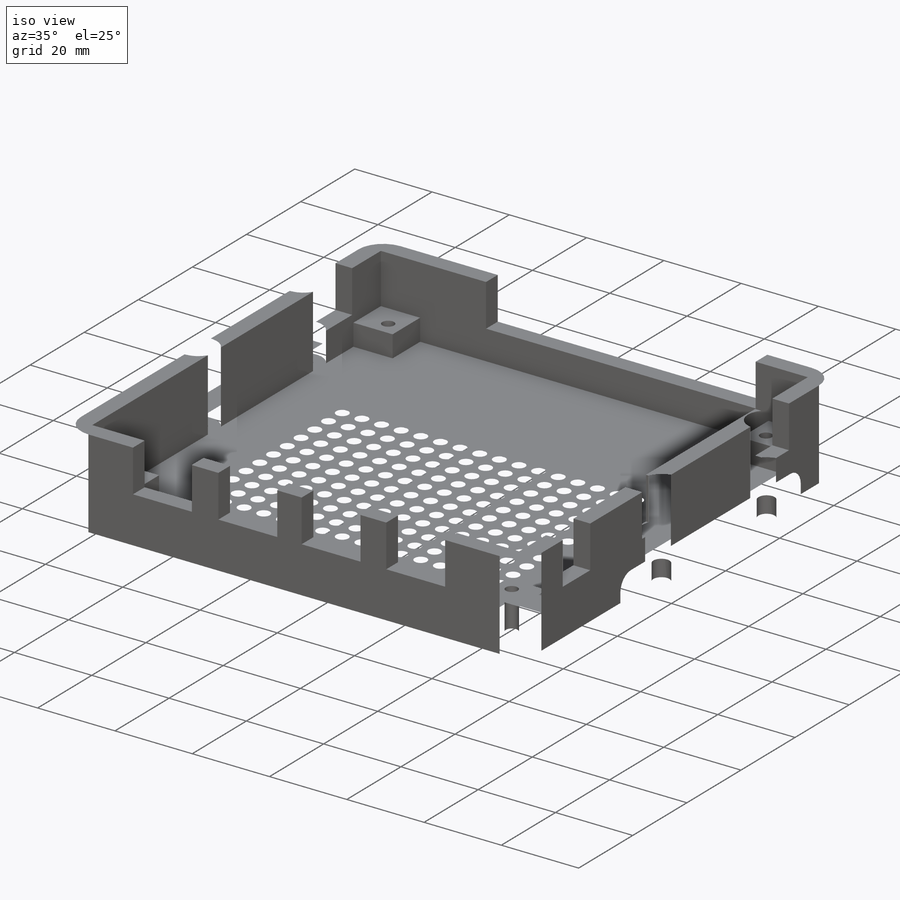
[diagram: iso view]
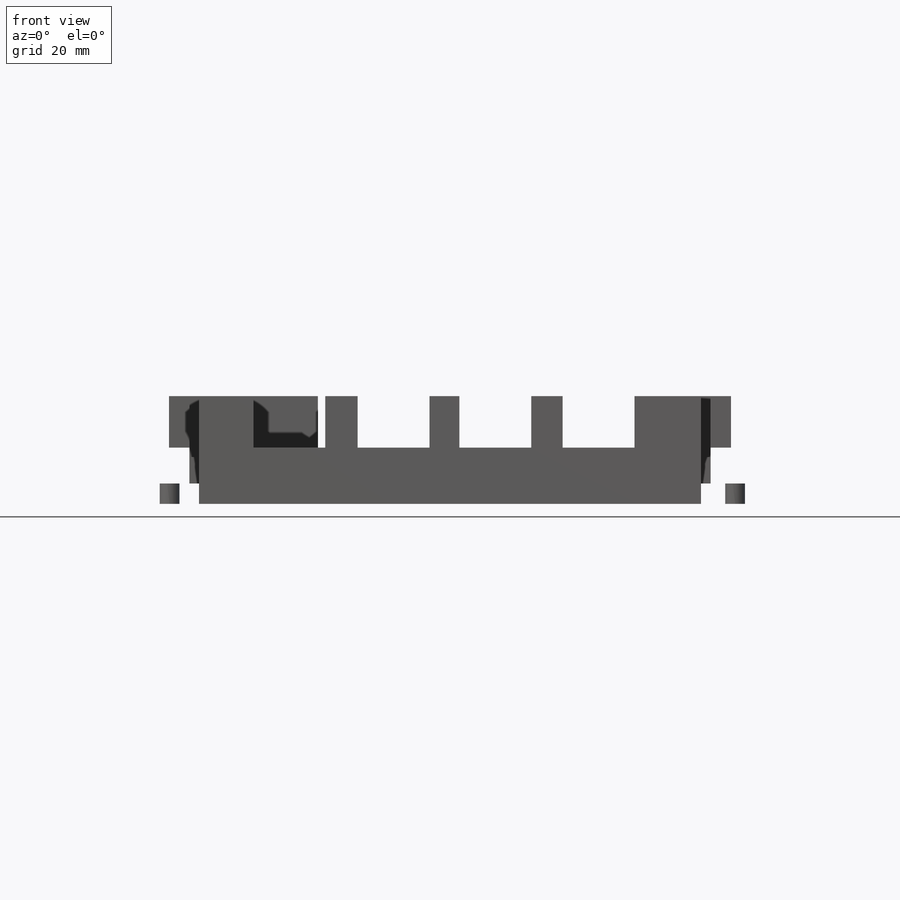
[diagram: front view]
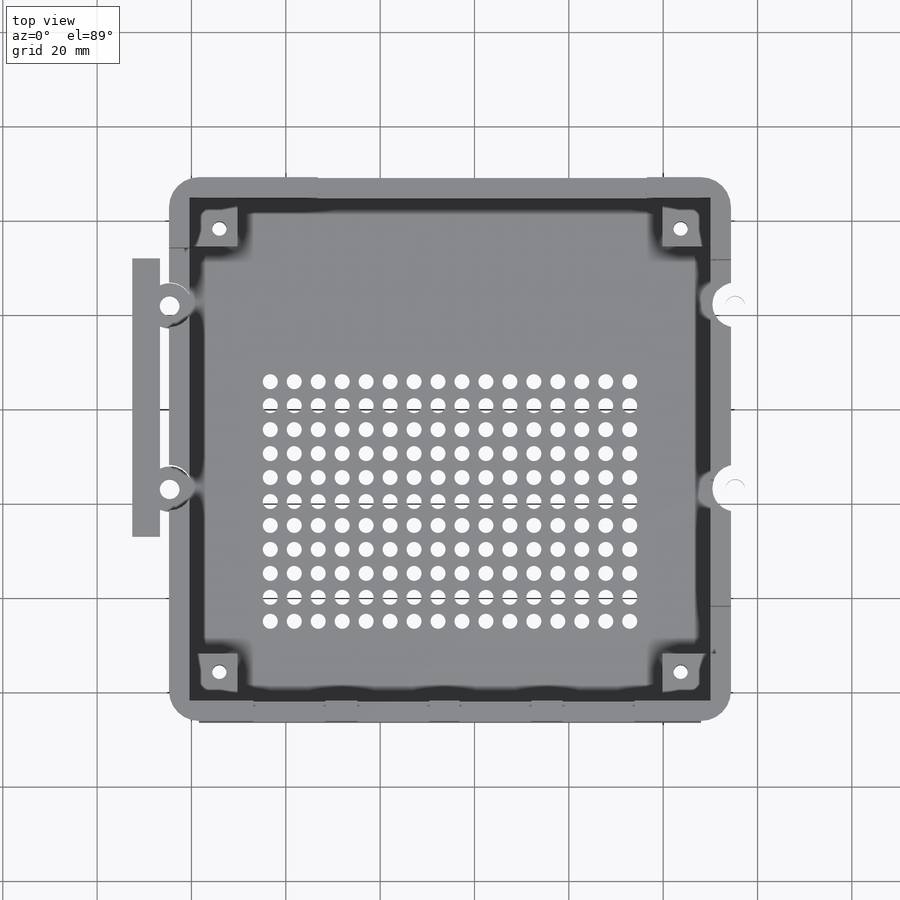
[diagram: top view]
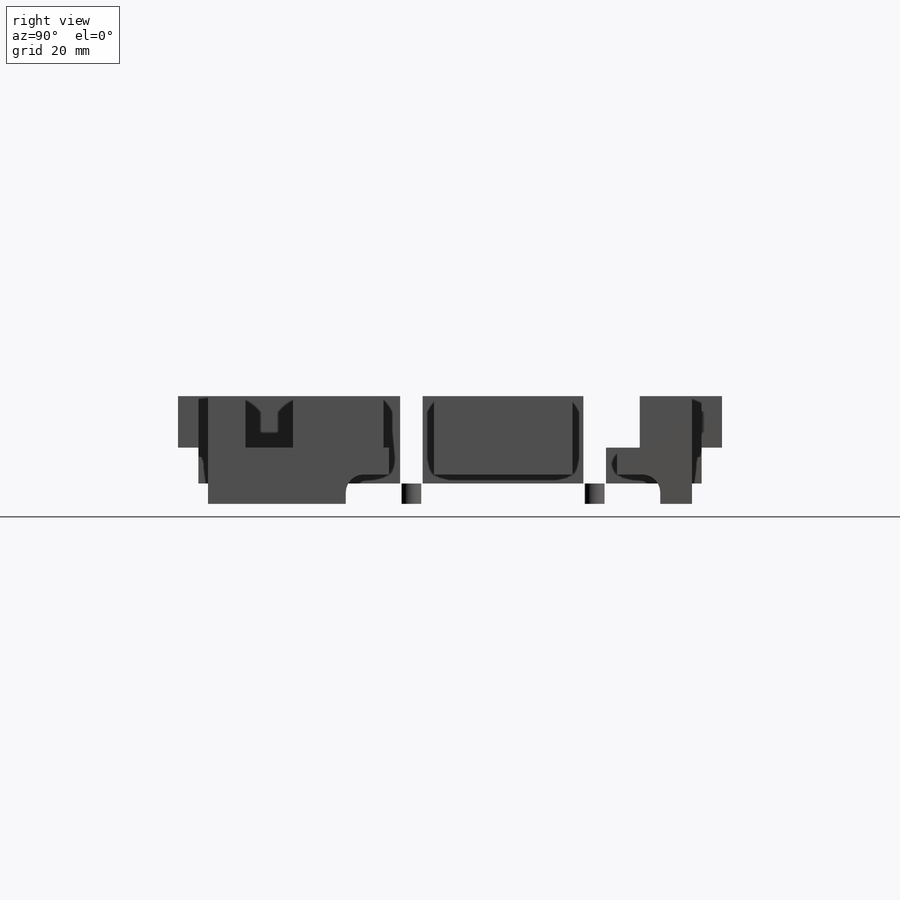
[diagram: right view]
SOLIDWORKS PART (.sldprt)
format: sldprt  version: not decoded by parser v0  size: 1,178,624 bytes
history: native  units: mm
features: sketch x8, extrude x5, cut_extrude x3, fillet x3, material x1 (+13 scaffold rows collapsed)
feature tree (33):
  scaffold x13  (default folders/planes/origin — collapsed)
  material  "ABS"
  sketch  "Sketch1"  dims[c1.D1=0.254mm c1.D2=4.318mm c2.D1=~0.132437mm c2.D2=0.254mm c3.D1=2.54mm]
  extrude  "Boss-Extrude2"  [1 undecoded]
  sketch  "Sketch2"  dims[D1=7.62mm]
  extrude  "Boss-Extrude4"  Depth=7.62mm
  sketch  "Sketch5"
  extrude  "Boss-Extrude6"  [1 undecoded]
  sketch  "Sketch6"
  extrude  "Boss-Extrude7"  Depth=4.318mm
  sketch  "Sketch7"  dims[c1.D5=~3.157741mm c1.D7=~2.686826mm c1.D6=~2.684049mm c1.D1=22.098mm c1.D2=22.098mm c1.D3=19.558mm c1.D4=43.053mm c2.D5=74.93mm c2.D6=54.737mm c2.D1=21.463mm c2.D2=21.463mm c2.D3=21.59mm c3.D5=50.673mm c3.D7=5.08mm c3.D6=16.0 c3.D8=11.0]
  cut_extrude  "Cut-Extrude1"  [1 undecoded]
  fillet  "Fillet1"  Radius=6.35mm
  sketch  "Sketch8"  dims[c1.D5=~2.714834mm c1.D7=4.191mm c1.D9=4.191mm c1.D10=4.191mm c1.D1=62.865mm c1.D2=138.557mm c1.D3=6.35mm c2.D3=14.986mm c2.D4=9.7155mm c2.D5=12.0015mm c2.D6=12.0015mm c2.D7=9.8425mm c2.D8=8.8265mm c2.D9=12.0015mm c2.D10=12.0015mm]
  extrude  "Boss-Extrude8"  Depth=4.318mm
  sketch  "Sketch9"
  cut_extrude  "Cut-Extrude2"  [1 undecoded]
  sketch  "Sketch10"  dims[D1=~3.518244mm]
  cut_extrude  "Cut-Extrude3"  [1 undecoded]
  fillet  "Fillet14"  Radius=1.905mm
  fillet  "Fillet15"  Radius=1.905mm
decode coverage: 11 of 19 modeling features carry decoded parameters
note: ~ marks probable driven/reference dimensions
note: 5 parameter values undecoded
summary: no parameter record found for 5 features
note: suppression state not decoded; provenance and decode notes live in map.json
